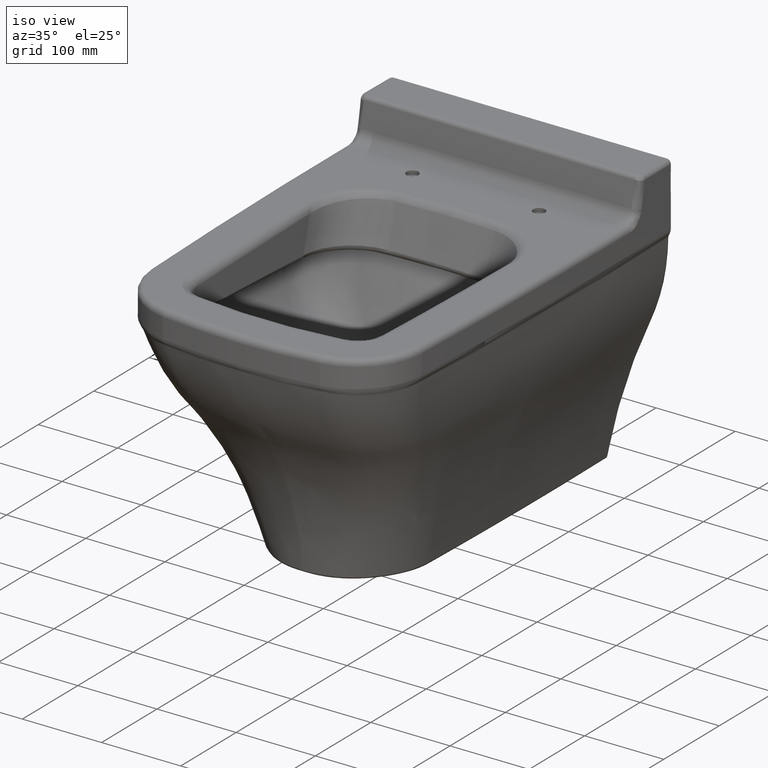
[diagram: clean part render]
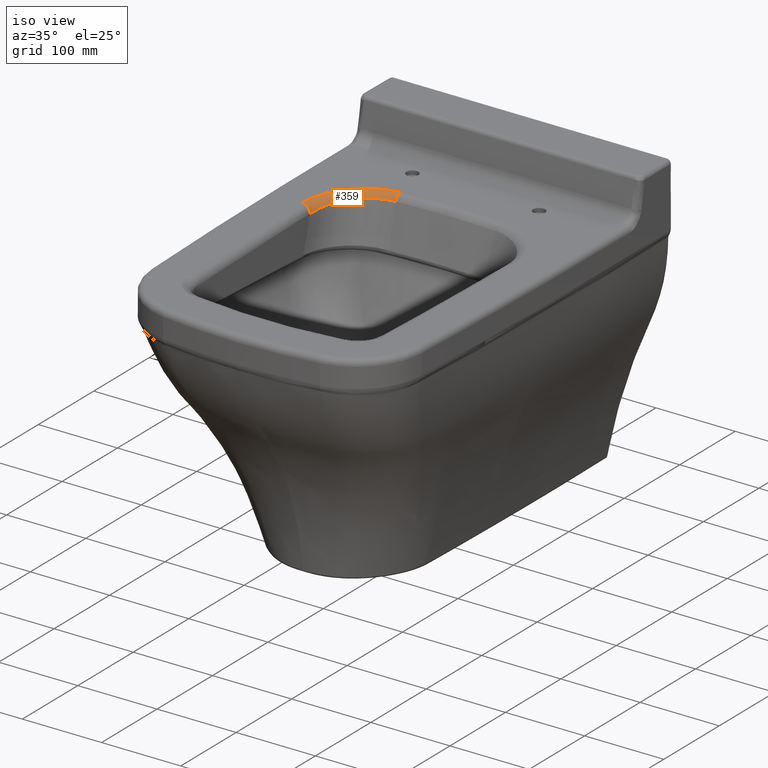
[diagram: same view with one face highlighted and labeled with its STEP entity id]
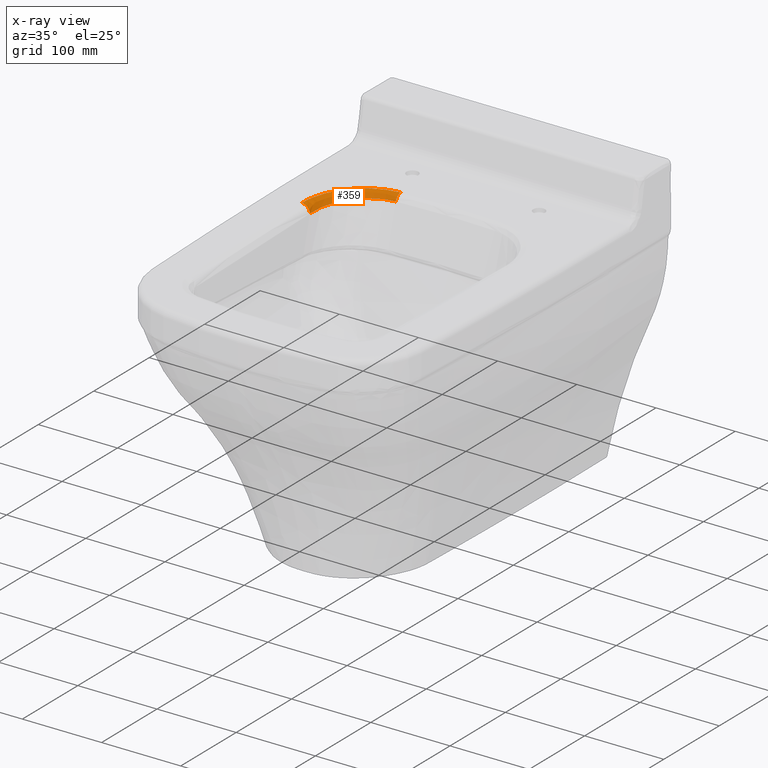
[diagram: x-ray of the same camera — body ghosted, the highlighted face saturated]
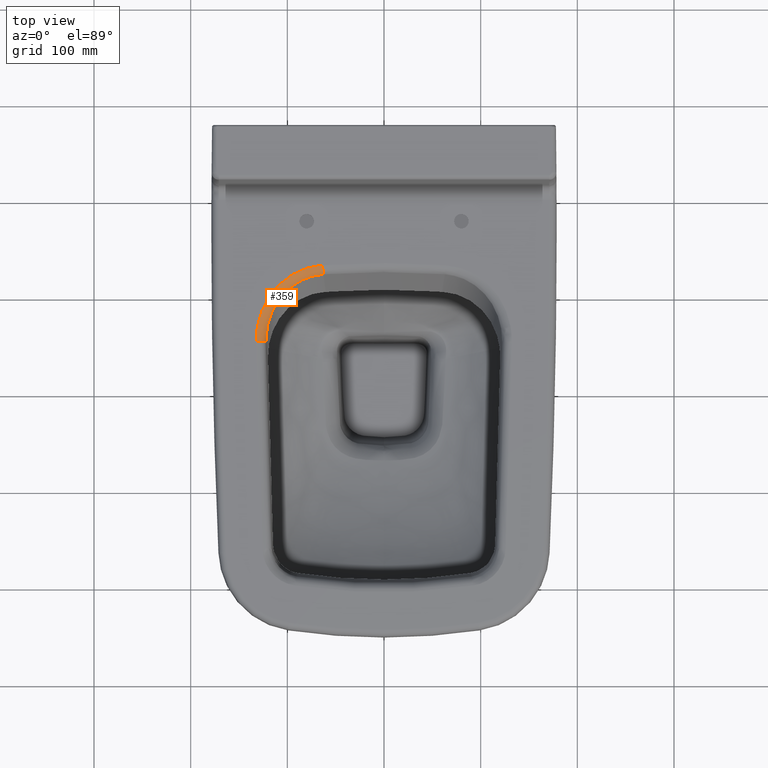
[diagram: same view with one face highlighted and labeled with its STEP entity id]
A machine part, iso view. The second image highlights one B-rep face of the part: STEP entity #359.
The next image is the same camera in x-ray: the body ghosted, the highlighted face saturated — about 0% of this face is hidden behind the body in this view.
A second angle (top view) of the same face is appended — the face is thin or edge-on in the first view.
In plain terms, the highlighted face is a freeform B-spline surface patch.
Its self-contained STEP definition (entity closure, byte-faithful):
#93=(
BOUNDED_SURFACE()
B_SPLINE_SURFACE(3,2,((#13557,#13558,#13559),(#13560,#13561,#13562),(#13563,
#13564,#13565),(#13566,#13567,#13568),(#13569,#13570,#13571),(#13572,#13573,
#13574),(#13575,#13576,#13577),(#13578,#13579,#13580),(#13581,#13582,#13583),
(#13584,#13585,#13586),(#13587,#13588,#13589),(#13590,#13591,#13592),(#13593,
#13594,#13595),(#13596,#13597,#13598),(#13599,#13600,#13601),(#13602,#13603,
#13604),(#13605,#13606,#13607),(#13608,#13609,#13610),(#13611,#13612,#13613),
(#13614,#13615,#13616)),.UNSPECIFIED.,.F.,.F.,.F.)
B_SPLINE_SURFACE_WITH_KNOTS((4,2,2,2,2,2,2,2,2,4),(3,3),(0.,0.25,0.375,
0.4375,0.5,0.625,0.6875,0.75,0.875,1.),(0.,1.),.UNSPECIFIED.)
GEOMETRIC_REPRESENTATION_ITEM()
RATIONAL_B_SPLINE_SURFACE(((1.,0.723678808790949,1.),(1.,0.737905590624846,
1.),(1.,0.751151280522582,1.),(1.,0.769301101999451,1.),(1.,0.774915009080247,
1.),(1.,0.782727703712848,1.),(1.,0.785229903858279,1.),(1.,0.790029844830708,
1.),(1.,0.792339528732301,1.),(1.,0.798853929362577,1.),(1.,0.802638501410194,
1.),(1.,0.807511749744508,1.),(1.,0.809001265435422,1.),(1.,0.811704018931178,
1.),(1.,0.812918509832109,1.),(1.,0.816058441916112,1.),(1.,0.817519742536735,
1.),(1.,0.819190312528716,1.),(1.,0.819391643923282,1.),(1.,0.818918339040913,
1.)))
REPRESENTATION_ITEM('')
SURFACE()
);
#239=CIRCLE('',#2131,10.);
#251=CIRCLE('',#2149,10.);
#359=ADVANCED_FACE('',(#517),#93,.T.);
#517=FACE_OUTER_BOUND('',#659,.T.);
#659=EDGE_LOOP('',(#1350,#1351,#1352,#1353));
#736=B_SPLINE_CURVE_WITH_KNOTS('',3,(#3674,#3675,#3676,#3677,#3678,#3679,
#3680,#3681,#3682,#3683,#3684,#3685,#3686,#3687,#3688,#3689),
 .UNSPECIFIED.,.F.,.F.,(4,2,2,2,2,2,2,4),(0.,0.125,0.25,0.375,0.500000000000001,
0.625,0.75,1.),.UNSPECIFIED.);
#1350=ORIENTED_EDGE('',*,*,#1972,.F.);
#1351=ORIENTED_EDGE('',*,*,#1934,.T.);
#1352=ORIENTED_EDGE('',*,*,#1919,.T.);
#1353=ORIENTED_EDGE('',*,*,#1758,.T.);
#1561=VERTEX_POINT('',#3616);
#1569=VERTEX_POINT('',#3673);
#1581=VERTEX_POINT('',#3736);
#1676=VERTEX_POINT('',#12778);
#1758=EDGE_CURVE('',#1561,#1569,#736,.T.);
#1919=EDGE_CURVE('',#1581,#1561,#239,.T.);
#1934=EDGE_CURVE('',#1676,#1581,#2044,.T.);
#1972=EDGE_CURVE('',#1676,#1569,#251,.T.);
#2044=(
BOUNDED_CURVE()
B_SPLINE_CURVE(3,(#12811,#12812,#12813,#12814,#12815,#12816,#12817,#12818,
#12819,#12820,#12821,#12822,#12823,#12824,#12825,#12826,#12827,#12828,#12829,
#12830),.UNSPECIFIED.,.F.,.F.)
B_SPLINE_CURVE_WITH_KNOTS((4,2,2,2,2,2,2,2,2,4),(0.,0.25,0.375,0.4375,0.5,
0.625,0.6875,0.75,0.875,1.),.UNSPECIFIED.)
CURVE()
GEOMETRIC_REPRESENTATION_ITEM()
RATIONAL_B_SPLINE_CURVE((1.,1.,1.,1.,1.,1.,1.,1.,1.,1.,1.,1.,1.,1.,1.,1.,
1.,1.,1.,1.))
REPRESENTATION_ITEM('')
);
#2131=AXIS2_PLACEMENT_3D('',#11951,#2299,#2300);
#2149=AXIS2_PLACEMENT_3D('',#13544,#2338,#2339);
#2299=DIRECTION('',(-0.997465952758389,-0.0711454361698647,-8.30557250274024E-15));
#2300=DIRECTION('',(0.0711454361698644,-0.997465952758389,0.));
#2338=DIRECTION('',(0.0152333411012423,-0.999883965927494,-1.05458949087991E-13));
#2339=DIRECTION('',(0.999883965927494,0.0152333411012423,0.));
#3616=CARTESIAN_POINT('',(-63.4981781556645,-170.259596527035,0.));
#3673=CARTESIAN_POINT('',(-132.22637088864,-249.658824672695,0.));
#3674=CARTESIAN_POINT('',(-63.4981781556645,-170.259596527035,0.));
#3675=CARTESIAN_POINT('',(-68.3620664716003,-170.606519100945,0.));
#3676=CARTESIAN_POINT('',(-73.1940444845969,-171.465255032472,0.));
#3677=CARTESIAN_POINT('',(-82.4589013639115,-174.107951289549,0.));
#3678=CARTESIAN_POINT('',(-86.9174816212985,-175.88703940239,0.));
#3679=CARTESIAN_POINT('',(-95.4890813982857,-180.355072519438,0.));
#3680=CARTESIAN_POINT('',(-99.5800806618127,-183.048431593249,0.));
#3681=CARTESIAN_POINT('',(-107.043145913029,-189.081909460867,0.));
#3682=CARTESIAN_POINT('',(-110.468357628938,-192.447370714841,0.));
#3683=CARTESIAN_POINT('',(-116.706914359407,-199.87485545204,0.));
#3684=CARTESIAN_POINT('',(-119.461982741433,-203.878711775572,0.));
#3685=CARTESIAN_POINT('',(-124.161421490417,-212.239472888377,0.));
#3686=CARTESIAN_POINT('',(-126.129770257192,-216.624981689426,0.));
#3687=CARTESIAN_POINT('',(-130.881873138041,-230.401643087322,0.));
#3688=CARTESIAN_POINT('',(-132.374648321399,-239.926210760931,0.));
#3689=CARTESIAN_POINT('',(-132.22637088864,-249.658824672695,0.));
#3736=CARTESIAN_POINT('',(-62.8294317291605,-179.635486638573,-6.58745507964949));
#11951=CARTESIAN_POINT('',(-63.4981781556644,-170.259596527035,-10.));
#12778=CARTESIAN_POINT('',(-122.238780500458,-249.506662645553,-9.52577963413816));
#12811=CARTESIAN_POINT('',(-122.238780500458,-249.506662645553,-9.52577963413825));
#12812=CARTESIAN_POINT('',(-122.388678464851,-240.951279884293,-9.11391397314734));
#12813=CARTESIAN_POINT('',(-121.116284432451,-232.526223595453,-8.71836321834996));
#12814=CARTESIAN_POINT('',(-117.027062384576,-220.386831587752,-8.16424832456407));
#12815=CARTESIAN_POINT('',(-115.330321185505,-216.523529459453,-7.99067713577054));
#12816=CARTESIAN_POINT('',(-112.288546303922,-211.001210287593,-7.74688247726071));
#12817=CARTESIAN_POINT('',(-111.191329901063,-209.206158550576,-7.6683951590377));
#12818=CARTESIAN_POINT('',(-108.82439271786,-205.710748116284,-7.51717208256541));
#12819=CARTESIAN_POINT('',(-107.546886421473,-204.001325910763,-7.44405572906016));
#12820=CARTESIAN_POINT('',(-103.502733417901,-199.098881816787,-7.2370252132577));
#12821=CARTESIAN_POINT('',(-100.540609013594,-196.138422287666,-7.11563981793151));
#12822=CARTESIAN_POINT('',(-95.6978867017306,-192.160073201434,-6.95854825572764));
#12823=CARTESIAN_POINT('',(-94.0166299804599,-190.911507289445,-6.91037557471471));
#12824=CARTESIAN_POINT('',(-90.514419810516,-188.576032619487,-6.82276823754705));
#12825=CARTESIAN_POINT('',(-88.6873997086321,-187.487369776391,-6.78329183579888));
#12826=CARTESIAN_POINT('',(-83.1212384062972,-184.546322125806,-6.6810600264914));
#12827=CARTESIAN_POINT('',(-79.2596503951374,-182.987221261563,-6.63324336596968));
#12828=CARTESIAN_POINT('',(-71.2329837946828,-180.677185985414,-6.57855859050678));
#12829=CARTESIAN_POINT('',(-67.0391630179451,-179.930154463396,-6.57207957187045));
#12830=CARTESIAN_POINT('',(-62.8294317291609,-179.635486638573,-6.58745507964945));
#13544=CARTESIAN_POINT('',(-132.22637088864,-249.658824672694,-10.));
#13557=CARTESIAN_POINT('',(-122.238780500458,-249.506662645553,-9.52577963413825));
#13558=CARTESIAN_POINT('',(-122.690968692278,-249.513551781895,1.73472347597681E-15));
#13559=CARTESIAN_POINT('',(-132.22637088864,-249.658824672695,0.));
#13560=CARTESIAN_POINT('',(-122.388678464851,-240.951279884293,-9.11391397314734));
#13561=CARTESIAN_POINT('',(-123.205601318958,-241.077913201123,-2.47556153798664E-11));
#13562=CARTESIAN_POINT('',(-132.374158086737,-239.958388417501,0.));
#13563=CARTESIAN_POINT('',(-121.116284432451,-232.526223595453,-8.71836321834996));
#13564=CARTESIAN_POINT('',(-122.287255974211,-232.446939423505,3.42485919870566E-11));
#13565=CARTESIAN_POINT('',(-130.881873134737,-230.401643089136,-1.73472347597681E-15));
#13566=CARTESIAN_POINT('',(-117.027062384576,-220.386831587752,-8.16424832456407));
#13567=CARTESIAN_POINT('',(-118.453820263017,-219.842761856566,-1.67228707650514E-11));
#13568=CARTESIAN_POINT('',(-126.129770258844,-216.624981688519,-1.73472347597681E-15));
#13569=CARTESIAN_POINT('',(-115.330321185505,-216.523529459453,-7.99067713577054));
#13570=CARTESIAN_POINT('',(-116.826114837997,-215.837280750133,1.25725631030579E-11));
#13571=CARTESIAN_POINT('',(-124.161421490477,-212.239472888367,0.));
#13572=CARTESIAN_POINT('',(-112.288546303922,-211.001210287593,-7.74688247726071));
#13573=CARTESIAN_POINT('',(-113.828140875059,-210.083408450105,-6.20797528440963E-12));
#13574=CARTESIAN_POINT('',(-120.636842428649,-205.968902053779,0.));
#13575=CARTESIAN_POINT('',(-111.191329901063,-209.206158550576,-7.6683951590377));
#13576=CARTESIAN_POINT('',(-112.741740099321,-208.215197752779,2.30717860369453E-11));
#13577=CARTESIAN_POINT('',(-119.366047764492,-203.930312431271,0.));
#13578=CARTESIAN_POINT('',(-108.82439271786,-205.710748116284,-7.51717208256541));
#13579=CARTESIAN_POINT('',(-110.380817031756,-204.573454647246,-2.29558224043843E-11));
#13580=CARTESIAN_POINT('',(-116.625767351455,-199.960003387036,0.));
#13581=CARTESIAN_POINT('',(-107.546886421473,-204.001325910763,-7.44405572906016));
#13582=CARTESIAN_POINT('',(-109.098879907619,-202.788831066144,-2.10908432800472E-12));
#13583=CARTESIAN_POINT('',(-115.147275178033,-198.017984266301,0.));
#13584=CARTESIAN_POINT('',(-103.502733417901,-199.098881816787,-7.2370252132577));
#13585=CARTESIAN_POINT('',(-105.029781285682,-197.680736718885,4.18377082739359E-12));
#13586=CARTESIAN_POINT('',(-110.468357626453,-192.44737071772,0.));
#13587=CARTESIAN_POINT('',(-100.540609013594,-196.138422287666,-7.11563981793151));
#13588=CARTESIAN_POINT('',(-102.013137312602,-194.571882428165,-4.17657663347572E-11));
#13589=CARTESIAN_POINT('',(-107.043145916257,-189.081909457143,0.));
#13590=CARTESIAN_POINT('',(-95.6978867017306,-192.160073201434,-6.95854825572764));
#13591=CARTESIAN_POINT('',(-97.0425711781765,-190.390151428637,2.07906162276838E-11));
#13592=CARTESIAN_POINT('',(-101.445846973004,-184.556801062014,0.));
#13593=CARTESIAN_POINT('',(-94.0166299804599,-190.911507289445,-6.91037557471471));
#13594=CARTESIAN_POINT('',(-95.3153628195079,-189.078639414294,2.10315448660326E-12));
#13595=CARTESIAN_POINT('',(-99.5030097646619,-183.13617076229,0.));
#13596=CARTESIAN_POINT('',(-90.514419810516,-188.576032619487,-6.82276823754705));
#13597=CARTESIAN_POINT('',(-91.7098077799656,-186.625809896396,-2.09615155448982E-12));
#13598=CARTESIAN_POINT('',(-95.4566782613812,-180.477805649925,0.));
#13599=CARTESIAN_POINT('',(-88.6873997086321,-187.487369776391,-6.78329183579888));
#13600=CARTESIAN_POINT('',(-89.82431312829,-185.481188014837,4.21566287744029E-12));
#13601=CARTESIAN_POINT('',(-93.346181455102,-179.238064237359,0.));
#13602=CARTESIAN_POINT('',(-83.1212384062972,-184.546322125806,-6.6810600264914));
#13603=CARTESIAN_POINT('',(-84.0793666938171,-182.394693649801,-8.34438108630486E-12));
#13604=CARTESIAN_POINT('',(-86.917481619172,-175.887039408023,0.));
#13605=CARTESIAN_POINT('',(-79.2596503951374,-182.987221261563,-6.63324336596968));
#13606=CARTESIAN_POINT('',(-80.0706732282882,-180.752215033085,0.));
#13607=CARTESIAN_POINT('',(-82.4589013631086,-174.107951291586,0.));
#13608=CARTESIAN_POINT('',(-71.2329837946828,-180.677185985414,-6.57855859050678));
#13609=CARTESIAN_POINT('',(-71.7381021156536,-178.330307542427,0.));
#13610=CARTESIAN_POINT('',(-73.1940444853995,-171.465255030435,0.));
#13611=CARTESIAN_POINT('',(-67.0391630179451,-179.930154463396,-6.57207957187045));
#13612=CARTESIAN_POINT('',(-67.3719344131178,-177.549628791848,-1.87815528335264E-10));
#13613=CARTESIAN_POINT('',(-68.3546182652696,-170.605987837942,0.));
#13614=CARTESIAN_POINT('',(-62.8294317291609,-179.635486638573,-6.58745507964945));
#13615=CARTESIAN_POINT('',(-62.9995804395153,-177.24998512757,8.67361737988404E-16));
#13616=CARTESIAN_POINT('',(-63.4981781556645,-170.259596527035,0.));